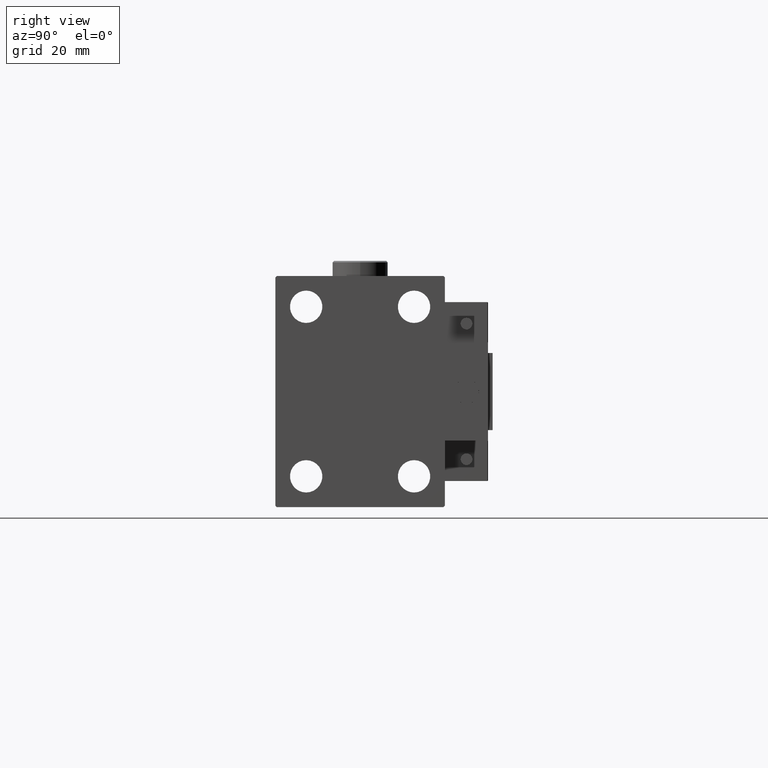
[diagram: clean part render]
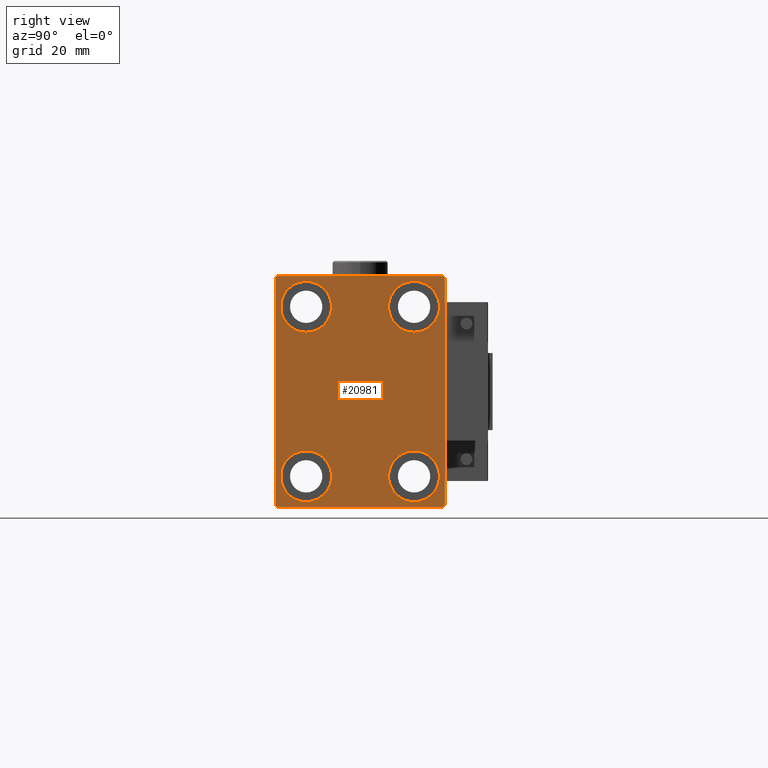
[diagram: same view with one face highlighted and labeled with its STEP entity id]
A machine part, right view. The second image highlights one B-rep face of the part: STEP entity #20981.
In plain terms, the highlighted planar face has unit normal (1, 0, 0).
Its self-contained STEP definition (entity closure, byte-faithful):
#292 = AXIS2_PLACEMENT_3D ( 'NONE', #10194, #5537, #51709 ) ;
#347 = ORIENTED_EDGE ( 'NONE', *, *, #26317, .T. ) ;
#460 = LINE ( 'NONE', #42779, #43391 ) ;
#735 = EDGE_CURVE ( 'NONE', #37010, #49353, #20528, .T. ) ;
#1037 = VERTEX_POINT ( 'NONE', #20721 ) ;
#1402 = PLANE ( 'NONE',  #292 ) ;
#1559 = AXIS2_PLACEMENT_3D ( 'NONE', #4692, #13722, #42073 ) ;
#1995 = DIRECTION ( 'NONE',  ( -1.000000000000000000, -0.000000000000000000, -0.000000000000000000 ) ) ;
#2937 = CARTESIAN_POINT ( 'NONE',  ( 85.00000000000000000, 17.50000000000000355, 27.49999999999999645 ) ) ;
#3031 = DIRECTION ( 'NONE',  ( 0.000000000000000000, 0.000000000000000000, 1.000000000000000000 ) ) ;
#3255 = DIRECTION ( 'NONE',  ( -1.000000000000000000, -0.000000000000000000, -0.000000000000000000 ) ) ;
#4162 = CARTESIAN_POINT ( 'NONE',  ( 85.00000000000000000, -17.49999999999999645, 19.25000000000000000 ) ) ;
#4210 = VERTEX_POINT ( 'NONE', #14125 ) ;
#4271 = CIRCLE ( 'NONE', #46279, 8.250000000000000000 ) ;
#4285 = ORIENTED_EDGE ( 'NONE', *, *, #40308, .T. ) ;
#4646 = ORIENTED_EDGE ( 'NONE', *, *, #735, .T. ) ;
#4692 = CARTESIAN_POINT ( 'NONE',  ( 85.00000000000000000, 17.50000000000000355, 27.49999999999999645 ) ) ;
#5219 = DIRECTION ( 'NONE',  ( 0.000000000000000000, 0.000000000000000000, 1.000000000000000000 ) ) ;
#5520 = LINE ( 'NONE', #22513, #13970 ) ;
#5537 = DIRECTION ( 'NONE',  ( 1.000000000000000000, 0.000000000000000000, 0.000000000000000000 ) ) ;
#6505 = DIRECTION ( 'NONE',  ( -1.000000000000000000, -0.000000000000000000, -0.000000000000000000 ) ) ;
#7119 = VERTEX_POINT ( 'NONE', #32495 ) ;
#8183 = EDGE_CURVE ( 'NONE', #11909, #1037, #17429, .T. ) ;
#8641 = ORIENTED_EDGE ( 'NONE', *, *, #27040, .T. ) ;
#9329 = EDGE_CURVE ( 'NONE', #10639, #24978, #5520, .T. ) ;
#9467 = EDGE_CURVE ( 'NONE', #12841, #12293, #44688, .T. ) ;
#9840 = ORIENTED_EDGE ( 'NONE', *, *, #22102, .T. ) ;
#9932 = FACE_BOUND ( 'NONE', #44629, .T. ) ;
#10037 = EDGE_LOOP ( 'NONE', ( #42481, #4646, #44177, #347, #17168, #37353, #9840, #35106 ) ) ;
#10194 = CARTESIAN_POINT ( 'NONE',  ( 85.00000000000000000, 0.000000000000000000, 0.000000000000000000 ) ) ;
#10353 = CIRCLE ( 'NONE', #41980, 8.249999999999992895 ) ;
#10639 = VERTEX_POINT ( 'NONE', #32124 ) ;
#10969 = LINE ( 'NONE', #40908, #43224 ) ;
#11909 = VERTEX_POINT ( 'NONE', #29017 ) ;
#12293 = VERTEX_POINT ( 'NONE', #18765 ) ;
#12403 = CARTESIAN_POINT ( 'NONE',  ( 85.00000000000000000, -27.00000000000000355, 37.50000000000000000 ) ) ;
#12841 = VERTEX_POINT ( 'NONE', #36952 ) ;
#13722 = DIRECTION ( 'NONE',  ( -1.000000000000000000, -0.000000000000000000, -0.000000000000000000 ) ) ;
#13970 = VECTOR ( 'NONE', #26641, 1000.000000000000000 ) ;
#14125 = CARTESIAN_POINT ( 'NONE',  ( 85.00000000000000000, -17.49999999999999645, 35.74999999999999289 ) ) ;
#14407 = ORIENTED_EDGE ( 'NONE', *, *, #28775, .T. ) ;
#14574 = CARTESIAN_POINT ( 'NONE',  ( 85.00000000000000000, -27.50000000000000355, 37.50000000000000000 ) ) ;
#15052 = DIRECTION ( 'NONE',  ( -0.000000000000000000, -0.7071067811865524577, 0.7071067811865426878 ) ) ;
#16317 = EDGE_CURVE ( 'NONE', #24978, #17679, #10969, .T. ) ;
#16678 = DIRECTION ( 'NONE',  ( 0.000000000000000000, -1.000000000000000000, -1.261617073437677999E-16 ) ) ;
#17168 = ORIENTED_EDGE ( 'NONE', *, *, #9329, .T. ) ;
#17311 = CARTESIAN_POINT ( 'NONE',  ( 85.00000000000000000, -17.50000000000000355, -27.50000000000000355 ) ) ;
#17429 = CIRCLE ( 'NONE', #41136, 8.250000000000000000 ) ;
#17679 = VERTEX_POINT ( 'NONE', #22107 ) ;
#18765 = CARTESIAN_POINT ( 'NONE',  ( 85.00000000000000000, 17.49999999999999645, -35.75000000000000711 ) ) ;
#18972 = DIRECTION ( 'NONE',  ( 0.000000000000000000, 0.000000000000000000, -1.000000000000000000 ) ) ;
#19131 = ORIENTED_EDGE ( 'NONE', *, *, #49532, .T. ) ;
#19303 = CARTESIAN_POINT ( 'NONE',  ( 85.00000000000000000, -27.50000000000000355, -37.00000000000000000 ) ) ;
#19675 = DIRECTION ( 'NONE',  ( 0.000000000000000000, 0.000000000000000000, 1.000000000000000000 ) ) ;
#19993 = CIRCLE ( 'NONE', #1559, 8.249999999999992895 ) ;
#19996 = VECTOR ( 'NONE', #28287, 1000.000000000000114 ) ;
#20338 = CARTESIAN_POINT ( 'NONE',  ( 85.00000000000000000, -32.25000000000000000, -32.25000000000000000 ) ) ;
#20528 = LINE ( 'NONE', #37297, #40110 ) ;
#20721 = CARTESIAN_POINT ( 'NONE',  ( 85.00000000000000000, -17.50000000000000355, -19.25000000000000355 ) ) ;
#20981 = ADVANCED_FACE ( 'NONE', ( #9932, #42920, #38782, #22812, #43733 ), #1402, .T. ) ;
#20997 = VERTEX_POINT ( 'NONE', #51977 ) ;
#21553 = EDGE_CURVE ( 'NONE', #49353, #26687, #35188, .T. ) ;
#21792 = CARTESIAN_POINT ( 'NONE',  ( 85.00000000000000000, 27.00000000000000355, -37.50000000000000000 ) ) ;
#22102 = EDGE_CURVE ( 'NONE', #17679, #20997, #51317, .T. ) ;
#22107 = CARTESIAN_POINT ( 'NONE',  ( 85.00000000000000000, 27.50000000000000355, -37.00000000000000000 ) ) ;
#22513 = CARTESIAN_POINT ( 'NONE',  ( 85.00000000000000000, -27.50000000000000355, -37.50000000000000000 ) ) ;
#22639 = AXIS2_PLACEMENT_3D ( 'NONE', #2937, #39750, #19675 ) ;
#22812 = FACE_BOUND ( 'NONE', #46033, .T. ) ;
#23506 = CARTESIAN_POINT ( 'NONE',  ( 85.00000000000000000, 17.49999999999999645, -27.50000000000000355 ) ) ;
#23571 = DIRECTION ( 'NONE',  ( 0.000000000000000000, 0.000000000000000000, 1.000000000000000000 ) ) ;
#23705 = ORIENTED_EDGE ( 'NONE', *, *, #49217, .T. ) ;
#23929 = DIRECTION ( 'NONE',  ( 0.000000000000000000, 0.000000000000000000, 1.000000000000000000 ) ) ;
#24375 = CARTESIAN_POINT ( 'NONE',  ( 85.00000000000000000, -27.50000000000000355, 37.00000000000000000 ) ) ;
#24978 = VERTEX_POINT ( 'NONE', #21792 ) ;
#26317 = EDGE_CURVE ( 'NONE', #26687, #10639, #49231, .T. ) ;
#26575 = VECTOR ( 'NONE', #18972, 1000.000000000000000 ) ;
#26641 = DIRECTION ( 'NONE',  ( 0.000000000000000000, 1.000000000000000000, 0.000000000000000000 ) ) ;
#26687 = VERTEX_POINT ( 'NONE', #19303 ) ;
#27040 = EDGE_CURVE ( 'NONE', #7119, #28133, #49028, .T. ) ;
#27901 = VERTEX_POINT ( 'NONE', #37126 ) ;
#27935 = LINE ( 'NONE', #53003, #48238 ) ;
#28026 = CARTESIAN_POINT ( 'NONE',  ( 85.00000000000000000, -17.50000000000000355, -27.50000000000000355 ) ) ;
#28133 = VERTEX_POINT ( 'NONE', #35621 ) ;
#28287 = DIRECTION ( 'NONE',  ( -0.000000000000000000, 0.7071067811865474617, -0.7071067811865474617 ) ) ;
#28775 = EDGE_CURVE ( 'NONE', #28133, #7119, #19993, .T. ) ;
#29017 = CARTESIAN_POINT ( 'NONE',  ( 85.00000000000000000, -17.50000000000000355, -35.75000000000000711 ) ) ;
#29778 = EDGE_CURVE ( 'NONE', #32957, #4210, #10353, .T. ) ;
#30360 = CARTESIAN_POINT ( 'NONE',  ( 85.00000000000000000, 27.50000000000000355, -37.50000000000000000 ) ) ;
#31876 = EDGE_CURVE ( 'NONE', #20997, #27901, #27935, .T. ) ;
#32124 = CARTESIAN_POINT ( 'NONE',  ( 85.00000000000000000, -27.00000000000000355, -37.50000000000000000 ) ) ;
#32495 = CARTESIAN_POINT ( 'NONE',  ( 85.00000000000000000, 17.50000000000000355, 19.25000000000000000 ) ) ;
#32957 = VERTEX_POINT ( 'NONE', #4162 ) ;
#33261 = AXIS2_PLACEMENT_3D ( 'NONE', #44270, #48671, #3031 ) ;
#33359 = ORIENTED_EDGE ( 'NONE', *, *, #29778, .T. ) ;
#34957 = CIRCLE ( 'NONE', #53304, 8.249999999999992895 ) ;
#35106 = ORIENTED_EDGE ( 'NONE', *, *, #31876, .T. ) ;
#35151 = DIRECTION ( 'NONE',  ( -1.000000000000000000, -0.000000000000000000, -0.000000000000000000 ) ) ;
#35166 = CARTESIAN_POINT ( 'NONE',  ( 85.00000000000000000, -17.49999999999999645, 27.49999999999999645 ) ) ;
#35188 = LINE ( 'NONE', #14574, #26575 ) ;
#35621 = CARTESIAN_POINT ( 'NONE',  ( 85.00000000000000000, 17.50000000000000355, 35.74999999999999289 ) ) ;
#36505 = DIRECTION ( 'NONE',  ( -0.000000000000000000, 0.7071067811865474617, 0.7071067811865474617 ) ) ;
#36952 = CARTESIAN_POINT ( 'NONE',  ( 85.00000000000000000, 17.49999999999999645, -19.25000000000000355 ) ) ;
#37010 = VERTEX_POINT ( 'NONE', #12403 ) ;
#37126 = CARTESIAN_POINT ( 'NONE',  ( 85.00000000000000000, 26.99999999999999645, 37.50000000000000711 ) ) ;
#37297 = CARTESIAN_POINT ( 'NONE',  ( 85.00000000000000000, -32.25000000000000000, 32.25000000000000000 ) ) ;
#37353 = ORIENTED_EDGE ( 'NONE', *, *, #16317, .T. ) ;
#38782 = FACE_BOUND ( 'NONE', #47054, .T. ) ;
#39750 = DIRECTION ( 'NONE',  ( -1.000000000000000000, -0.000000000000000000, -0.000000000000000000 ) ) ;
#40110 = VECTOR ( 'NONE', #54069, 1000.000000000000114 ) ;
#40308 = EDGE_CURVE ( 'NONE', #1037, #11909, #41394, .T. ) ;
#40382 = DIRECTION ( 'NONE',  ( -1.000000000000000000, -0.000000000000000000, -0.000000000000000000 ) ) ;
#40908 = CARTESIAN_POINT ( 'NONE',  ( 85.00000000000000000, 32.25000000000000000, -32.25000000000000000 ) ) ;
#41136 = AXIS2_PLACEMENT_3D ( 'NONE', #28026, #1995, #23929 ) ;
#41394 = CIRCLE ( 'NONE', #45801, 8.250000000000000000 ) ;
#41980 = AXIS2_PLACEMENT_3D ( 'NONE', #35166, #40382, #51946 ) ;
#42073 = DIRECTION ( 'NONE',  ( 0.000000000000000000, 0.000000000000000000, 1.000000000000000000 ) ) ;
#42481 = ORIENTED_EDGE ( 'NONE', *, *, #46080, .T. ) ;
#42779 = CARTESIAN_POINT ( 'NONE',  ( 85.00000000000000000, 27.49999999999999645, 37.50000000000000711 ) ) ;
#42920 = FACE_BOUND ( 'NONE', #48443, .T. ) ;
#43224 = VECTOR ( 'NONE', #36505, 1000.000000000000114 ) ;
#43391 = VECTOR ( 'NONE', #16678, 1000.000000000000000 ) ;
#43733 = FACE_OUTER_BOUND ( 'NONE', #10037, .T. ) ;
#43958 = CARTESIAN_POINT ( 'NONE',  ( 85.00000000000000000, -17.49999999999999645, 27.49999999999999645 ) ) ;
#44177 = ORIENTED_EDGE ( 'NONE', *, *, #21553, .T. ) ;
#44270 = CARTESIAN_POINT ( 'NONE',  ( 85.00000000000000000, 17.49999999999999645, -27.50000000000000355 ) ) ;
#44318 = ORIENTED_EDGE ( 'NONE', *, *, #8183, .T. ) ;
#44629 = EDGE_LOOP ( 'NONE', ( #19131, #46691 ) ) ;
#44688 = CIRCLE ( 'NONE', #33261, 8.250000000000000000 ) ;
#45801 = AXIS2_PLACEMENT_3D ( 'NONE', #17311, #35151, #5219 ) ;
#46033 = EDGE_LOOP ( 'NONE', ( #44318, #4285 ) ) ;
#46080 = EDGE_CURVE ( 'NONE', #27901, #37010, #460, .T. ) ;
#46279 = AXIS2_PLACEMENT_3D ( 'NONE', #23506, #6505, #48573 ) ;
#46646 = DIRECTION ( 'NONE',  ( 0.000000000000000000, -9.251858538542970348E-17, 1.000000000000000000 ) ) ;
#46691 = ORIENTED_EDGE ( 'NONE', *, *, #9467, .T. ) ;
#47054 = EDGE_LOOP ( 'NONE', ( #8641, #14407 ) ) ;
#48238 = VECTOR ( 'NONE', #15052, 1000.000000000000000 ) ;
#48443 = EDGE_LOOP ( 'NONE', ( #33359, #23705 ) ) ;
#48573 = DIRECTION ( 'NONE',  ( 0.000000000000000000, 0.000000000000000000, 1.000000000000000000 ) ) ;
#48671 = DIRECTION ( 'NONE',  ( -1.000000000000000000, -0.000000000000000000, -0.000000000000000000 ) ) ;
#49028 = CIRCLE ( 'NONE', #22639, 8.249999999999992895 ) ;
#49217 = EDGE_CURVE ( 'NONE', #4210, #32957, #34957, .T. ) ;
#49231 = LINE ( 'NONE', #20338, #19996 ) ;
#49353 = VERTEX_POINT ( 'NONE', #24375 ) ;
#49532 = EDGE_CURVE ( 'NONE', #12293, #12841, #4271, .T. ) ;
#50461 = VECTOR ( 'NONE', #46646, 1000.000000000000000 ) ;
#51317 = LINE ( 'NONE', #30360, #50461 ) ;
#51709 = DIRECTION ( 'NONE',  ( 0.000000000000000000, 0.000000000000000000, -1.000000000000000000 ) ) ;
#51946 = DIRECTION ( 'NONE',  ( 0.000000000000000000, 0.000000000000000000, 1.000000000000000000 ) ) ;
#51977 = CARTESIAN_POINT ( 'NONE',  ( 85.00000000000000000, 27.49999999999999645, 37.00000000000001421 ) ) ;
#53003 = CARTESIAN_POINT ( 'NONE',  ( 85.00000000000000000, 32.24999999999981526, 32.25000000000025580 ) ) ;
#53304 = AXIS2_PLACEMENT_3D ( 'NONE', #43958, #3255, #23571 ) ;
#54069 = DIRECTION ( 'NONE',  ( 0.000000000000000000, -0.7071067811865474617, -0.7071067811865474617 ) ) ;